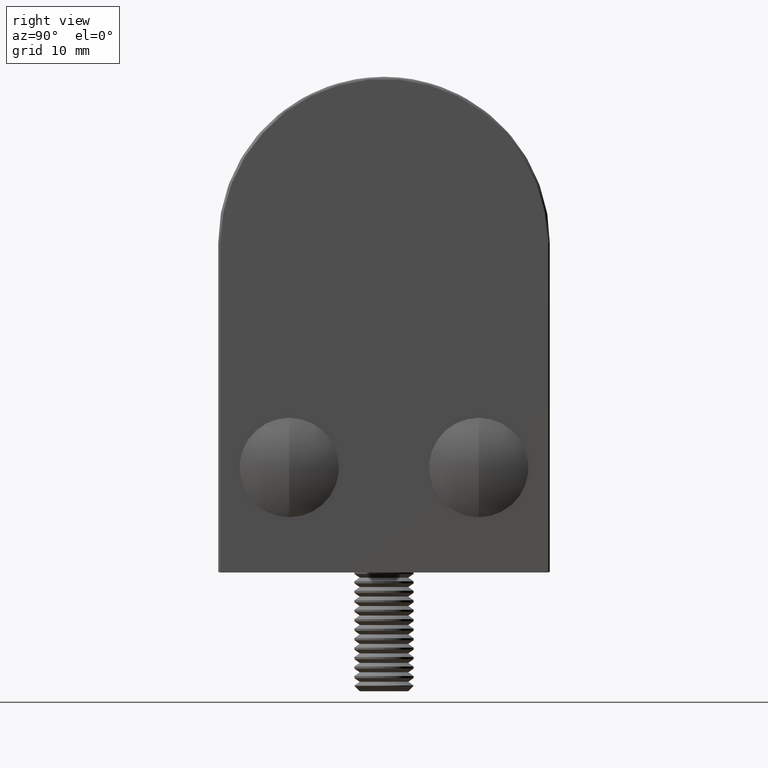
[diagram: clean part render]
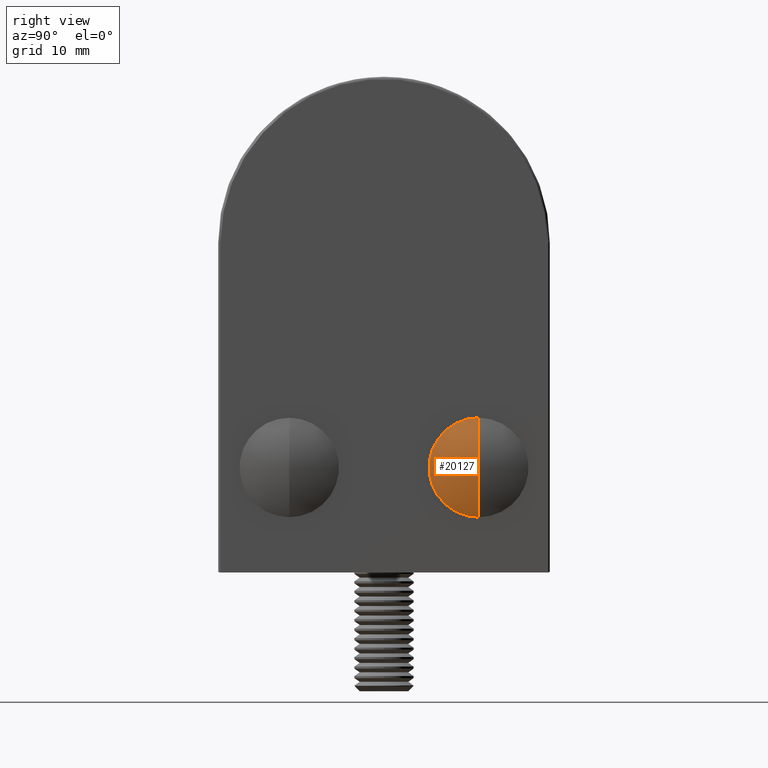
[diagram: same view with one face highlighted and labeled with its STEP entity id]
A machine part, right view. The second image highlights one B-rep face of the part: STEP entity #20127.
In plain terms, the highlighted spherical surface has radius 9.32 mm.
Its self-contained STEP definition (entity closure, byte-faithful):
#2523 = AXIS2_PLACEMENT_3D ( 'NONE', #34787, #47935, #26207 ) ;
#6154 = DIRECTION ( 'NONE',  ( 0.0000000000000000000, 0.0000000000000000000, -1.000000000000000000 ) ) ;
#8655 = CARTESIAN_POINT ( 'NONE',  ( 0.0000000000000000000, -8.319999999999993200, 0.0000000000000000000 ) ) ;
#11225 = ORIENTED_EDGE ( 'NONE', *, *, #18091, .T. ) ;
#11435 = CIRCLE ( 'NONE', #13878, 4.200000000000001100 ) ;
#13194 = DIRECTION ( 'NONE',  ( 1.224646799147353200E-016, -0.0000000000000000000, 1.000000000000000000 ) ) ;
#13878 = AXIS2_PLACEMENT_3D ( 'NONE', #36479, #14306, #49827 ) ;
#14306 = DIRECTION ( 'NONE',  ( -0.0000000000000000000, -1.000000000000000000, -0.0000000000000000000 ) ) ;
#14433 = VERTEX_POINT ( 'NONE', #17653 ) ;
#17653 = CARTESIAN_POINT ( 'NONE',  ( -4.200000000000000200, 8.673617379884035500E-016, 5.143516556418884900E-016 ) ) ;
#18091 = EDGE_CURVE ( 'NONE', #38333, #14433, #52609, .T. ) ;
#19692 = CARTESIAN_POINT ( 'NONE',  ( 0.0000000000000000000, -8.319999999999993200, 0.0000000000000000000 ) ) ;
#20113 = CARTESIAN_POINT ( 'NONE',  ( 4.200000000000000200, 8.673617379884035500E-016, 0.0000000000000000000 ) ) ;
#20127 = ADVANCED_FACE ( 'NONE', ( #45607 ), #20360, .T. ) ;
#20360 = SPHERICAL_SURFACE ( 'NONE', #2523, 9.319999999999995000 ) ;
#21365 = AXIS2_PLACEMENT_3D ( 'NONE', #19692, #6154, #45663 ) ;
#21934 = EDGE_CURVE ( 'NONE', #31373, #14433, #11435, .T. ) ;
#23321 = AXIS2_PLACEMENT_3D ( 'NONE', #8655, #13194, #43773 ) ;
#26207 = DIRECTION ( 'NONE',  ( 1.000000000000000000, 0.0000000000000000000, 0.0000000000000000000 ) ) ;
#26273 = EDGE_CURVE ( 'NONE', #38333, #31373, #28820, .T. ) ;
#26930 = ORIENTED_EDGE ( 'NONE', *, *, #21934, .F. ) ;
#28820 = CIRCLE ( 'NONE', #21365, 9.319999999999995000 ) ;
#31373 = VERTEX_POINT ( 'NONE', #20113 ) ;
#34787 = CARTESIAN_POINT ( 'NONE',  ( 0.0000000000000000000, -8.319999999999993200, 0.0000000000000000000 ) ) ;
#36479 = CARTESIAN_POINT ( 'NONE',  ( 0.0000000000000000000, 0.0000000000000000000, 0.0000000000000000000 ) ) ;
#38333 = VERTEX_POINT ( 'NONE', #56126 ) ;
#40185 = ORIENTED_EDGE ( 'NONE', *, *, #26273, .F. ) ;
#43773 = DIRECTION ( 'NONE',  ( 1.000000000000000000, 0.0000000000000000000, -1.224646799147353500E-016 ) ) ;
#45607 = FACE_OUTER_BOUND ( 'NONE', #54283, .T. ) ;
#45663 = DIRECTION ( 'NONE',  ( -1.000000000000000000, 0.0000000000000000000, 0.0000000000000000000 ) ) ;
#47935 = DIRECTION ( 'NONE',  ( 0.0000000000000000000, 0.0000000000000000000, 1.000000000000000000 ) ) ;
#49827 = DIRECTION ( 'NONE',  ( 0.0000000000000000000, 0.0000000000000000000, -1.000000000000000000 ) ) ;
#52609 = CIRCLE ( 'NONE', #23321, 9.319999999999995000 ) ;
#54283 = EDGE_LOOP ( 'NONE', ( #40185, #11225, #26930 ) ) ;
#56126 = CARTESIAN_POINT ( 'NONE',  ( 5.706854084026663700E-016, 1.000000000000000900, 0.0000000000000000000 ) ) ;